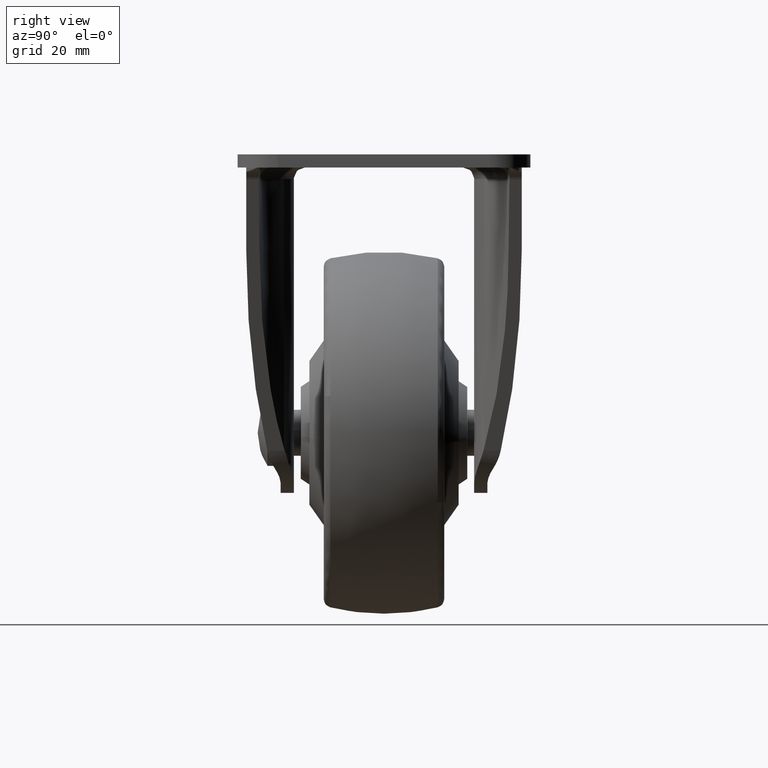
[diagram: clean part render]
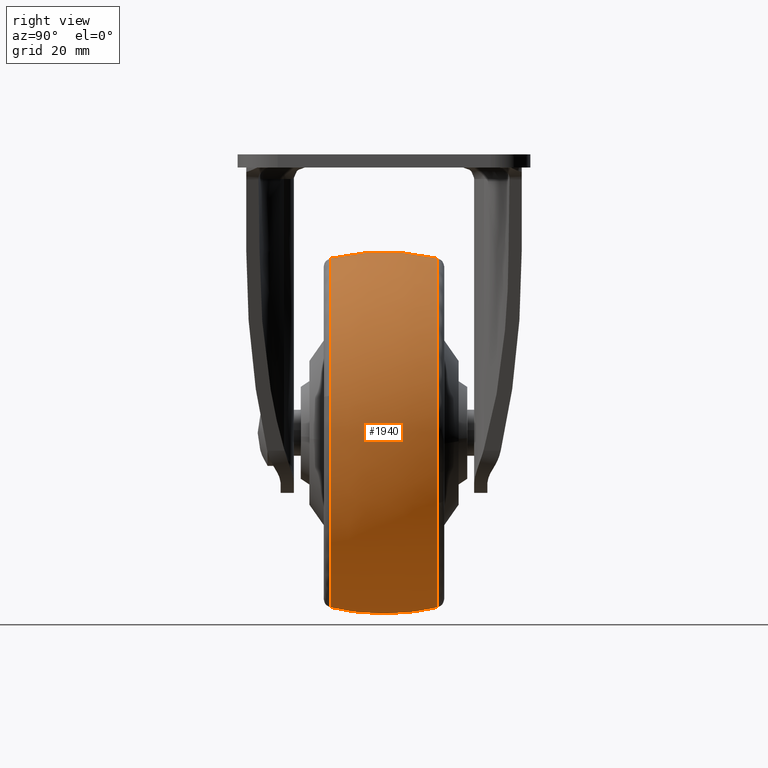
[diagram: same view with one face highlighted and labeled with its STEP entity id]
A machine part, right view. The second image highlights one B-rep face of the part: STEP entity #1940.
In plain terms, the highlighted face is a freeform B-spline surface patch.
Its self-contained STEP definition (entity closure, byte-faithful):
#1212=CARTESIAN_POINT('',(8.131372775793359,-9.350649182213761,-77.783732835305329));
#1213=VERTEX_POINT('',#1212);
#1227=CARTESIAN_POINT('',(29.700853358014530,-9.350643555591327,-42.056740539452349));
#1228=VERTEX_POINT('',#1227);
#1229=CARTESIAN_POINT('',(8.131372775793359,-9.350649182213761,-77.783732835305329));
#1230=CARTESIAN_POINT('',(30.391713214015152,-9.350648178652367,-71.602583212856914));
#1231=CARTESIAN_POINT('',(30.391713214015152,-9.350644464058343,-48.499998825128927));
#1232=CARTESIAN_POINT('',(30.391713214015152,-9.350643940107243,-45.241331947924778));
#1233=CARTESIAN_POINT('',(29.700853358014534,-9.350643555591327,-42.056740539452349));
#1241=(BOUNDED_CURVE()B_SPLINE_CURVE(2,(#1229,#1230,#1231,#1232,#1233),.UNSPECIFIED.,.F.,.U.)B_SPLINE_CURVE_WITH_KNOTS((3,2,3),(0.045601389145859,0.250000000000000,0.286296733965138),.UNSPECIFIED.)CURVE()GEOMETRIC_REPRESENTATION_ITEM()RATIONAL_B_SPLINE_CURVE((0.912639460428325,0.760532131783729,1.0,0.957475731026141,0.927299398676330))REPRESENTATION_ITEM(''));
#1242=EDGE_CURVE('',#1213,#1228,#1241,.T.);
#1341=CARTESIAN_POINT('',(0.0,-9.350639577467357,-18.108284436242730));
#1342=VERTEX_POINT('',#1341);
#1343=CARTESIAN_POINT('',(29.700853358014534,-9.350643555591327,-42.056740539452349));
#1344=CARTESIAN_POINT('',(24.505511306888554,-9.350639577467355,-18.108284436242730));
#1345=CARTESIAN_POINT('',(0.0,-9.350639577467357,-18.108284436242730));
#1353=(BOUNDED_CURVE()B_SPLINE_CURVE(2,(#1343,#1344,#1345),.UNSPECIFIED.,.F.,.U.)B_SPLINE_CURVE_WITH_KNOTS((3,3),(0.286296733965138,0.500000000000000),.UNSPECIFIED.)CURVE()GEOMETRIC_REPRESENTATION_ITEM()RATIONAL_B_SPLINE_CURVE((0.927299398676330,0.749631050160407,1.0))REPRESENTATION_ITEM(''));
#1354=EDGE_CURVE('',#1228,#1342,#1353,.T.);
#1356=CARTESIAN_POINT('',(-30.188444227470679,-9.350648244138307,-44.990857173290820));
#1357=VERTEX_POINT('',#1356);
#1371=CARTESIAN_POINT('',(0.0,-9.350649350649331,-78.891713214015155));
#1372=VERTEX_POINT('',#1371);
#1373=CARTESIAN_POINT('',(-30.188444227470676,-9.350648244138307,-44.990857173290820));
#1374=CARTESIAN_POINT('',(-30.391713471453620,-9.350648272676500,-46.739541324007050));
#1375=CARTESIAN_POINT('',(-30.391713463800091,-9.350648304724166,-48.499999970964687));
#1376=CARTESIAN_POINT('',(-30.391713331673138,-9.350648857979676,-78.891713200338444));
#1377=CARTESIAN_POINT('',(0.0,-9.350649350649331,-78.891713214015155));
#1385=(BOUNDED_CURVE()B_SPLINE_CURVE(2,(#1373,#1374,#1375,#1376,#1377),.UNSPECIFIED.,.F.,.U.)B_SPLINE_CURVE_WITH_KNOTS((3,2,3),(0.730000072552732,0.750000000000000,1.0),.UNSPECIFIED.)CURVE()GEOMETRIC_REPRESENTATION_ITEM()RATIONAL_B_SPLINE_CURVE((0.956886260992074,0.976568627495736,1.0,0.707106781186548,1.0))REPRESENTATION_ITEM(''));
#1386=EDGE_CURVE('',#1357,#1372,#1385,.T.);
#1388=CARTESIAN_POINT('',(0.0,-9.350649350649331,-78.891713214015155));
#1389=CARTESIAN_POINT('',(4.141173052850991,-9.350649350649331,-78.891713214015141));
#1390=CARTESIAN_POINT('',(8.131372775793359,-9.350649182213761,-77.783732835305329));
#1398=(BOUNDED_CURVE()B_SPLINE_CURVE(2,(#1388,#1389,#1390),.UNSPECIFIED.,.F.,.U.)B_SPLINE_CURVE_WITH_KNOTS((3,3),(0.0,0.045601389145859),.UNSPECIFIED.)CURVE()GEOMETRIC_REPRESENTATION_ITEM()RATIONAL_B_SPLINE_CURVE((1.0,0.946574649402818,0.912639460428325))REPRESENTATION_ITEM(''));
#1399=EDGE_CURVE('',#1372,#1213,#1398,.T.);
#1434=CARTESIAN_POINT('',(27.821786495395099,9.350641132517076,-60.731291223658992));
#1435=VERTEX_POINT('',#1434);
#1436=CARTESIAN_POINT('',(0.0,9.350628647344419,-18.108281808346291));
#1437=VERTEX_POINT('',#1436);
#1438=CARTESIAN_POINT('',(27.821786495395095,9.350641132517076,-60.731291223658985));
#1439=CARTESIAN_POINT('',(30.391714519882541,9.350639280820021,-54.885629645346206));
#1440=CARTESIAN_POINT('',(30.391714372593849,9.350637319355476,-48.499998020527237));
#1441=CARTESIAN_POINT('',(30.391713671589425,9.350627983979287,-18.108282009509896));
#1442=CARTESIAN_POINT('',(0.0,9.350628647344419,-18.108281808346291));
#1450=(BOUNDED_CURVE()B_SPLINE_CURVE(2,(#1438,#1439,#1440,#1441,#1442),.UNSPECIFIED.,.F.,.U.)B_SPLINE_CURVE_WITH_KNOTS((3,2,3),(0.181662073465430,0.250000000000000,0.500000000000000),.UNSPECIFIED.)CURVE()GEOMETRIC_REPRESENTATION_ITEM()RATIONAL_B_SPLINE_CURVE((0.883644917190528,0.919937138921010,1.0,0.707106781186548,1.0))REPRESENTATION_ITEM(''));
#1451=EDGE_CURVE('',#1435,#1437,#1450,.T.);
#1554=CARTESIAN_POINT('',(0.0,9.350649350649350,-78.891713214015155));
#1555=VERTEX_POINT('',#1554);
#1556=CARTESIAN_POINT('',(0.0,9.350649350649350,-78.891713214015155));
#1557=CARTESIAN_POINT('',(19.837919391635250,9.350648334373176,-78.891713522198032));
#1558=CARTESIAN_POINT('',(27.821786495395095,9.350641132517076,-60.731291223658985));
#1566=(BOUNDED_CURVE()B_SPLINE_CURVE(2,(#1556,#1557,#1558),.UNSPECIFIED.,.F.,.U.)B_SPLINE_CURVE_WITH_KNOTS((3,3),(0.0,0.181662073465430),.UNSPECIFIED.)CURVE()GEOMETRIC_REPRESENTATION_ITEM()RATIONAL_B_SPLINE_CURVE((1.0,0.787169642265538,0.883644917190528))REPRESENTATION_ITEM(''));
#1567=EDGE_CURVE('',#1555,#1435,#1566,.T.);
#1569=CARTESIAN_POINT('',(-30.188446843240161,9.350637235361571,-44.990856752918788));
#1570=VERTEX_POINT('',#1569);
#1571=CARTESIAN_POINT('',(-30.188446843240154,9.350637235361571,-44.990856752918788));
#1572=CARTESIAN_POINT('',(-30.391716032755308,9.350637547828789,-46.739540968317385));
#1573=CARTESIAN_POINT('',(-30.391715948955380,9.350637898721542,-48.499999682087079));
#1574=CARTESIAN_POINT('',(-30.391714502273711,9.350643956365431,-78.891713064266327));
#1575=CARTESIAN_POINT('',(0.0,9.350649350649350,-78.891713214015155));
#1583=(BOUNDED_CURVE()B_SPLINE_CURVE(2,(#1571,#1572,#1573,#1574,#1575),.UNSPECIFIED.,.F.,.U.)B_SPLINE_CURVE_WITH_KNOTS((3,2,3),(0.730000071909690,0.750000000000000,1.0),.UNSPECIFIED.)CURVE()GEOMETRIC_REPRESENTATION_ITEM()RATIONAL_B_SPLINE_CURVE((0.956886259726412,0.976568626742366,1.0,0.707106781186548,1.0))REPRESENTATION_ITEM(''));
#1584=EDGE_CURVE('',#1570,#1555,#1583,.T.);
#1848=CARTESIAN_POINT('',(-29.950383638808301,-10.296549197088328,-45.018517365391567));
#1849=CARTESIAN_POINT('',(-31.289316711442137,-5.236506368770335,-44.862877547969063));
#1850=CARTESIAN_POINT('',(-31.289316711442147,7.347638E-015,-44.862877547969077));
#1851=CARTESIAN_POINT('',(-31.289316711442137,5.236506368770344,-44.862877547969063));
#1852=CARTESIAN_POINT('',(-29.950383638808312,10.296549197088334,-45.018517365391560));
#1853=CARTESIAN_POINT('',(-30.152051363827244,-10.296549197088328,-46.753417798856518));
#1854=CARTESIAN_POINT('',(-31.499999999999989,-5.236506368770336,-46.675336773204670));
#1855=CARTESIAN_POINT('',(-31.499999999999996,7.347638E-015,-46.675336773204656));
#1856=CARTESIAN_POINT('',(-31.499999999999989,5.236506368770345,-46.675336773204663));
#1857=CARTESIAN_POINT('',(-30.152051363827251,10.296549197088334,-46.753417798856518));
#1858=CARTESIAN_POINT('',(-30.152051363827240,-10.296549197088330,-48.500000000000007));
#1859=CARTESIAN_POINT('',(-31.499999999999996,-5.236506368770335,-48.500000000000007));
#1860=CARTESIAN_POINT('',(-31.500000000000000,7.347638E-015,-48.500000000000000));
#1861=CARTESIAN_POINT('',(-31.499999999999993,5.236506368770344,-48.500000000000007));
#1862=CARTESIAN_POINT('',(-30.152051363827233,10.296549197088330,-48.499999999999993));
#1863=CARTESIAN_POINT('',(-30.152051363827240,-10.296549197088328,-78.652051363827240));
#1864=CARTESIAN_POINT('',(-31.500000000000007,-5.236506368770336,-80.0));
#1865=CARTESIAN_POINT('',(-31.500000000000000,7.347638E-015,-79.999999999999986));
#1866=CARTESIAN_POINT('',(-31.500000000000007,5.236506368770344,-80.0));
#1867=CARTESIAN_POINT('',(-30.152051363827255,10.296549197088332,-78.652051363827240));
#1868=CARTESIAN_POINT('',(0.0,-10.296549197088330,-78.652051363827255));
#1869=CARTESIAN_POINT('',(0.0,-5.236506368770335,-80.0));
#1870=CARTESIAN_POINT('',(0.0,7.347638E-015,-80.0));
#1871=CARTESIAN_POINT('',(0.0,5.236506368770344,-79.999999999999986));
#1872=CARTESIAN_POINT('',(0.0,10.296549197088330,-78.652051363827226));
#1873=CARTESIAN_POINT('',(30.152051363827240,-10.296549197088328,-78.652051363827240));
#1874=CARTESIAN_POINT('',(31.500000000000007,-5.236506368770336,-80.0));
#1875=CARTESIAN_POINT('',(31.500000000000000,7.347638E-015,-79.999999999999986));
#1876=CARTESIAN_POINT('',(31.500000000000007,5.236506368770344,-80.0));
#1877=CARTESIAN_POINT('',(30.152051363827255,10.296549197088332,-78.652051363827240));
#1878=CARTESIAN_POINT('',(30.152051363827240,-10.296549197088330,-48.500000000000007));
#1879=CARTESIAN_POINT('',(31.499999999999996,-5.236506368770335,-48.500000000000007));
#1880=CARTESIAN_POINT('',(31.500000000000000,7.347638E-015,-48.500000000000000));
#1881=CARTESIAN_POINT('',(31.499999999999993,5.236506368770344,-48.500000000000007));
#1882=CARTESIAN_POINT('',(30.152051363827233,10.296549197088330,-48.499999999999993));
#1883=CARTESIAN_POINT('',(30.152051363827240,-10.296549197088328,-18.347948636172752));
#1884=CARTESIAN_POINT('',(31.500000000000007,-5.236506368770336,-17.000000000000004));
#1885=CARTESIAN_POINT('',(31.500000000000000,7.347638E-015,-17.000000000000004));
#1886=CARTESIAN_POINT('',(31.500000000000007,5.236506368770344,-17.000000000000004));
#1887=CARTESIAN_POINT('',(30.152051363827255,10.296549197088332,-18.347948636172752));
#1888=CARTESIAN_POINT('',(0.0,-10.296549197088330,-18.347948636172756));
#1889=CARTESIAN_POINT('',(0.0,-5.236506368770335,-17.0));
#1890=CARTESIAN_POINT('',(0.0,7.347638E-015,-17.0));
#1891=CARTESIAN_POINT('',(0.0,5.236506368770344,-17.0));
#1892=CARTESIAN_POINT('',(0.0,10.296549197088330,-18.347948636172749));
#1900=(BOUNDED_SURFACE()B_SPLINE_SURFACE(2,2,((#1848,#1853,#1858,#1863,#1868,#1873,#1878,#1883,#1888),(#1849,#1854,#1859,#1864,#1869,#1874,#1879,#1884,#1889),(#1850,#1855,#1860,#1865,#1870,#1875,#1880,#1885,#1890),(#1851,#1856,#1861,#1866,#1871,#1876,#1881,#1886,#1891),(#1852,#1857,#1862,#1867,#1872,#1877,#1882,#1887,#1892)),.UNSPECIFIED.,.F.,.F.,.U.)B_SPLINE_SURFACE_WITH_KNOTS((3,2,3),(3,2,2,2,3),(0.0,10.772103718447200,21.544207436894389),(0.0,4.175271837691034,56.366180696701008,108.557089555711000,160.747998414720910),.UNSPECIFIED.)GEOMETRIC_REPRESENTATION_ITEM()RATIONAL_B_SPLINE_SURFACE(((0.889247260426734,0.907538401297480,0.929313568135483,0.657123925877267,0.929313568135483,0.657123925877267,0.929313568135483,0.657123925877267,0.929313568135483),(0.914642611511919,0.933456115469776,0.955853143101057,0.675890239305233,0.955853143101057,0.675890239305233,0.955853143101057,0.675890239305233,0.955853143101057),(0.956886126402807,0.976568547383107,1.0,0.707106781186548,1.0,0.707106781186548,1.0,0.707106781186548,1.0),(0.914642611511919,0.933456115469776,0.955853143101057,0.675890239305233,0.955853143101057,0.675890239305233,0.955853143101057,0.675890239305233,0.955853143101057),(0.889247260426734,0.907538401297480,0.929313568135483,0.657123925877267,0.929313568135483,0.657123925877267,0.929313568135483,0.657123925877267,0.929313568135483)))REPRESENTATION_ITEM('')SURFACE());
#1901=ORIENTED_EDGE('',*,*,#1386,.F.);
#1902=CARTESIAN_POINT('',(-30.188444227470676,-9.350648244138307,-44.990857173290820));
#1903=CARTESIAN_POINT('',(-31.289318123556221,-4.741004007475630,-44.862889696104411));
#1904=CARTESIAN_POINT('',(-31.289318120173956,-2.067043E-013,-44.862889667011423));
#1905=CARTESIAN_POINT('',(-31.289318116791691,4.740998266700004,-44.862889637918471));
#1906=CARTESIAN_POINT('',(-30.188446843240165,9.350637235361571,-44.990856752918788));
#1914=(BOUNDED_CURVE()B_SPLINE_CURVE(2,(#1902,#1903,#1904,#1905,#1906),.UNSPECIFIED.,.F.,.U.)B_SPLINE_CURVE_WITH_KNOTS((3,2,3),(0.409347614456109,0.500000000000000,0.590652280180762),.UNSPECIFIED.)CURVE()GEOMETRIC_REPRESENTATION_ITEM()RATIONAL_B_SPLINE_CURVE((0.893999390469218,0.918479440405938,0.956886118190660,0.918479485045113,0.893999447374406))REPRESENTATION_ITEM(''));
#1915=EDGE_CURVE('',#1357,#1570,#1914,.T.);
#1916=ORIENTED_EDGE('',*,*,#1915,.T.);
#1917=ORIENTED_EDGE('',*,*,#1584,.T.);
#1918=ORIENTED_EDGE('',*,*,#1567,.T.);
#1919=ORIENTED_EDGE('',*,*,#1451,.T.);
#1920=CARTESIAN_POINT('',(0.0,-9.350639577467357,-18.108284436242727));
#1921=CARTESIAN_POINT('',(0.0,-4.740999488044175,-16.999999999999996));
#1922=CARTESIAN_POINT('',(0.0,7.347638E-015,-17.0));
#1923=CARTESIAN_POINT('',(0.0,4.740993788285543,-17.000000000000004));
#1924=CARTESIAN_POINT('',(0.0,9.350628647344419,-18.108281808346288));
#1932=(BOUNDED_CURVE()B_SPLINE_CURVE(2,(#1920,#1921,#1922,#1923,#1924),.UNSPECIFIED.,.F.,.U.)B_SPLINE_CURVE_WITH_KNOTS((3,2,3),(0.409347697403355,0.500000000000000,0.590652197986304),.UNSPECIFIED.)CURVE()GEOMETRIC_REPRESENTATION_ITEM()RATIONAL_B_SPLINE_CURVE((0.934279867031952,0.959862890774191,1.0,0.959862937091345,0.934279926076227))REPRESENTATION_ITEM(''));
#1933=EDGE_CURVE('',#1342,#1437,#1932,.T.);
#1934=ORIENTED_EDGE('',*,*,#1933,.F.);
#1935=ORIENTED_EDGE('',*,*,#1354,.F.);
#1936=ORIENTED_EDGE('',*,*,#1242,.F.);
#1937=ORIENTED_EDGE('',*,*,#1399,.F.);
#1938=EDGE_LOOP('',(#1901,#1916,#1917,#1918,#1919,#1934,#1935,#1936,#1937));
#1939=FACE_OUTER_BOUND('',#1938,.T.);
#1940=ADVANCED_FACE('',(#1939),#1900,.T.);